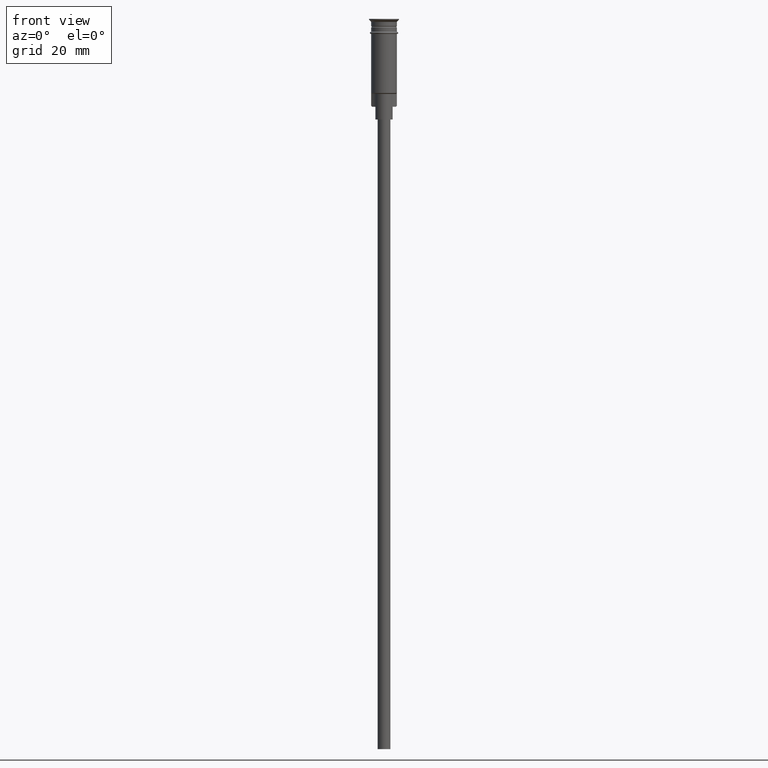
[diagram: clean part render]
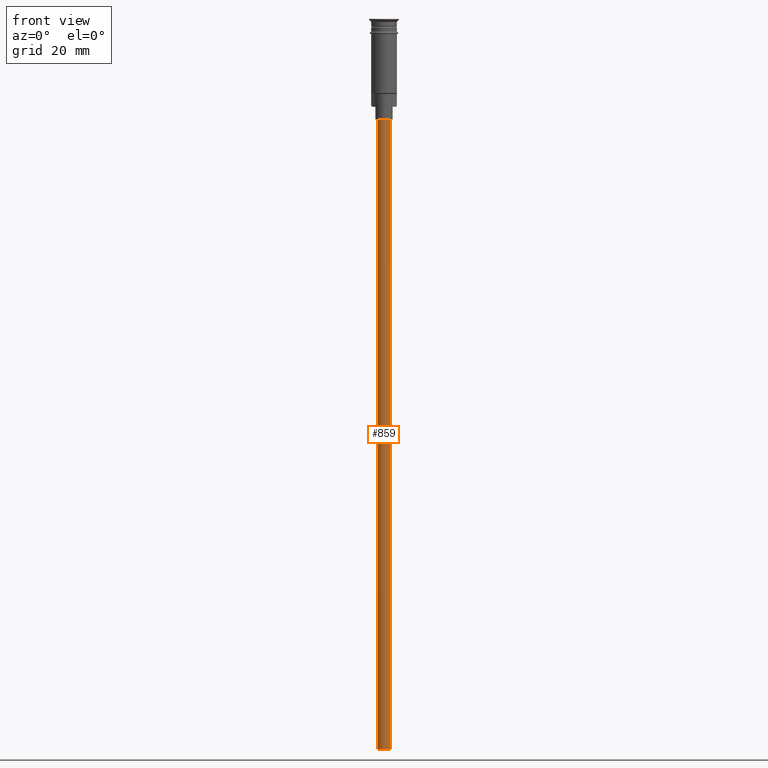
[diagram: same view with one face highlighted and labeled with its STEP entity id]
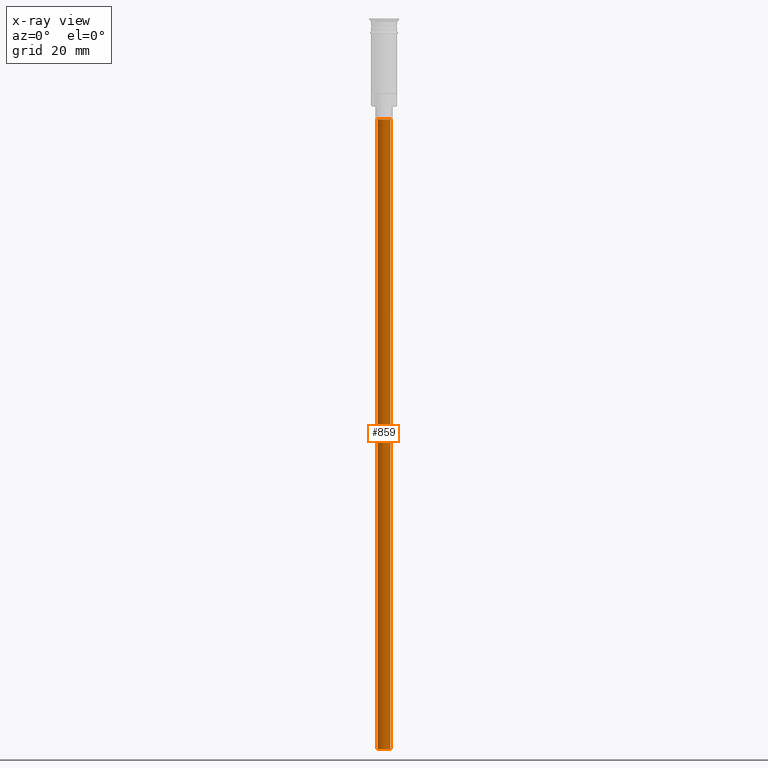
[diagram: x-ray of the same camera — body ghosted, the highlighted face saturated]
A machine part, front view. The second image highlights one B-rep face of the part: STEP entity #859.
The next image is the same camera in x-ray: the body ghosted, the highlighted face saturated — about 0% of this face is hidden behind the body in this view.
In plain terms, the highlighted cylindrical surface (edge-blend (fillet) strip) has radius 1.5 mm, axis along (-0, -0, 1).
Its self-contained STEP definition (entity closure, byte-faithful):
#22 = EDGE_CURVE ( 'NONE', #1291, #177, #532, .T. ) ;
#25 = VERTEX_POINT ( 'NONE', #1598 ) ;
#53 = VERTEX_POINT ( 'NONE', #786 ) ;
#172 = DIRECTION ( 'NONE',  ( 1.000000000000000000, 0.000000000000000000, 0.000000000000000000 ) ) ;
#177 = VERTEX_POINT ( 'NONE', #899 ) ;
#203 = ORIENTED_EDGE ( 'NONE', *, *, #1316, .T. ) ;
#316 = AXIS2_PLACEMENT_3D ( 'NONE', #434, #637, #1014 ) ;
#401 = EDGE_CURVE ( 'NONE', #177, #25, #478, .T. ) ;
#413 = EDGE_LOOP ( 'NONE', ( #721, #586, #991, #203 ) ) ;
#434 = CARTESIAN_POINT ( 'NONE',  ( 0.000000000000000000, 0.000000000000000000, -23.50000000000000000 ) ) ;
#478 = LINE ( 'NONE', #952, #1413 ) ;
#532 = CIRCLE ( 'NONE', #1016, 1.500000000000000222 ) ;
#586 = ORIENTED_EDGE ( 'NONE', *, *, #22, .F. ) ;
#599 = CARTESIAN_POINT ( 'NONE',  ( 1.500000000000000222, 0.000000000000000000, -170.4999999999999716 ) ) ;
#631 = CYLINDRICAL_SURFACE ( 'NONE', #932, 1.500000000000000222 ) ;
#637 = DIRECTION ( 'NONE',  ( 0.000000000000000000, 0.000000000000000000, -1.000000000000000000 ) ) ;
#709 = DIRECTION ( 'NONE',  ( -1.000000000000000000, 0.000000000000000000, 0.000000000000000000 ) ) ;
#721 = ORIENTED_EDGE ( 'NONE', *, *, #401, .F. ) ;
#736 = VECTOR ( 'NONE', #1464, 1000.000000000000000 ) ;
#737 = FACE_OUTER_BOUND ( 'NONE', #413, .T. ) ;
#786 = CARTESIAN_POINT ( 'NONE',  ( 1.500000000000000222, 0.000000000000000000, -23.50000000000000000 ) ) ;
#839 = CARTESIAN_POINT ( 'NONE',  ( 0.000000000000000000, 0.000000000000000000, -170.4999999999999716 ) ) ;
#859 = ADVANCED_FACE ( 'NONE', ( #737 ), #631, .T. ) ;
#872 = CARTESIAN_POINT ( 'NONE',  ( 0.000000000000000000, 0.000000000000000000, -170.4999999999999716 ) ) ;
#899 = CARTESIAN_POINT ( 'NONE',  ( -1.500000000000000222, 1.836970198721030181E-16, -170.4999999999999716 ) ) ;
#932 = AXIS2_PLACEMENT_3D ( 'NONE', #872, #1103, #172 ) ;
#952 = CARTESIAN_POINT ( 'NONE',  ( -1.500000000000000222, 1.836970198721030181E-16, -170.4999999999999716 ) ) ;
#955 = LINE ( 'NONE', #599, #736 ) ;
#991 = ORIENTED_EDGE ( 'NONE', *, *, #1234, .T. ) ;
#1014 = DIRECTION ( 'NONE',  ( -1.000000000000000000, 0.000000000000000000, 0.000000000000000000 ) ) ;
#1016 = AXIS2_PLACEMENT_3D ( 'NONE', #839, #1453, #709 ) ;
#1103 = DIRECTION ( 'NONE',  ( -0.000000000000000000, -0.000000000000000000, 1.000000000000000000 ) ) ;
#1234 = EDGE_CURVE ( 'NONE', #1291, #53, #955, .T. ) ;
#1291 = VERTEX_POINT ( 'NONE', #1531 ) ;
#1316 = EDGE_CURVE ( 'NONE', #53, #25, #1392, .T. ) ;
#1392 = CIRCLE ( 'NONE', #316, 1.500000000000000222 ) ;
#1413 = VECTOR ( 'NONE', #1461, 1000.000000000000000 ) ;
#1453 = DIRECTION ( 'NONE',  ( 0.000000000000000000, 0.000000000000000000, -1.000000000000000000 ) ) ;
#1461 = DIRECTION ( 'NONE',  ( -0.000000000000000000, -0.000000000000000000, 1.000000000000000000 ) ) ;
#1464 = DIRECTION ( 'NONE',  ( -0.000000000000000000, -0.000000000000000000, 1.000000000000000000 ) ) ;
#1531 = CARTESIAN_POINT ( 'NONE',  ( 1.500000000000000222, 0.000000000000000000, -170.4999999999999716 ) ) ;
#1598 = CARTESIAN_POINT ( 'NONE',  ( -1.500000000000000222, 1.836970198721030181E-16, -23.50000000000000000 ) ) ;